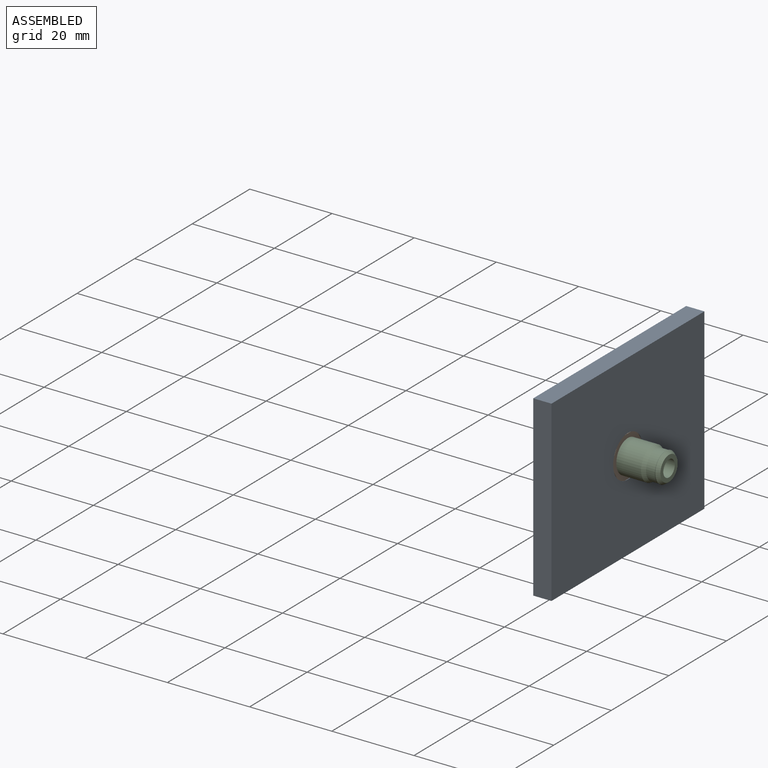
[diagram: assembled view]
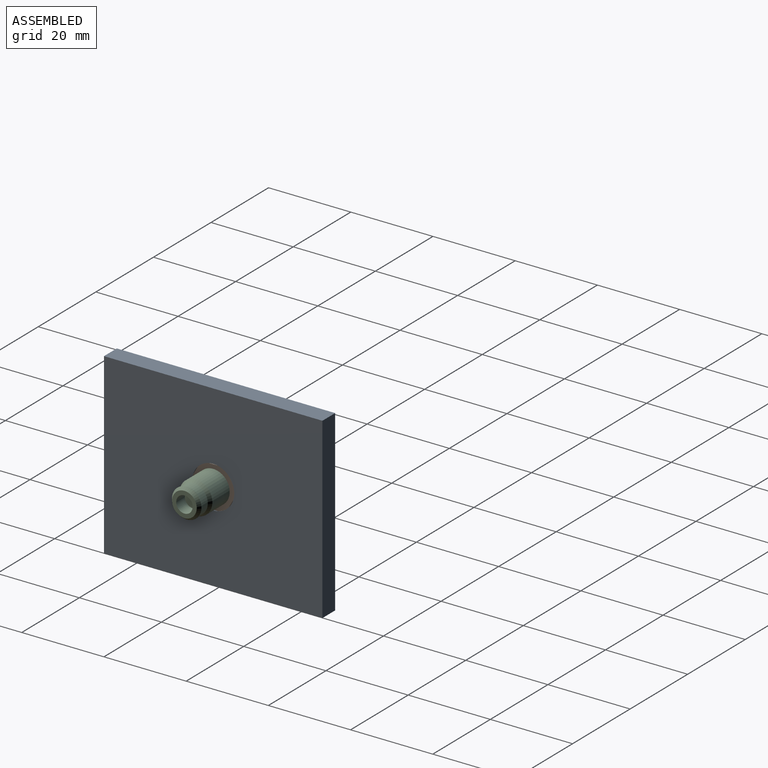
[diagram: assembled view, second angle]
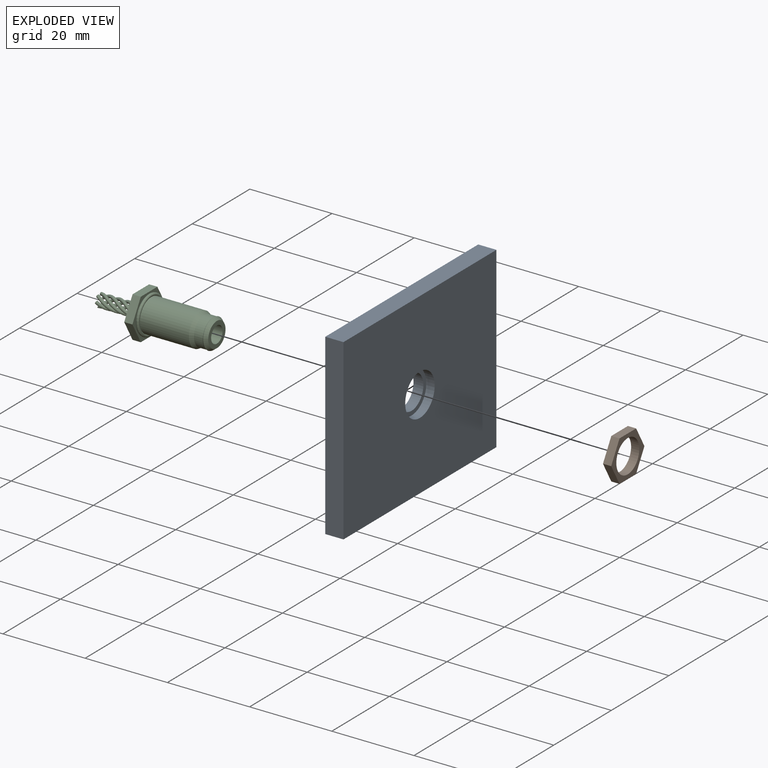
[diagram: exploded view]
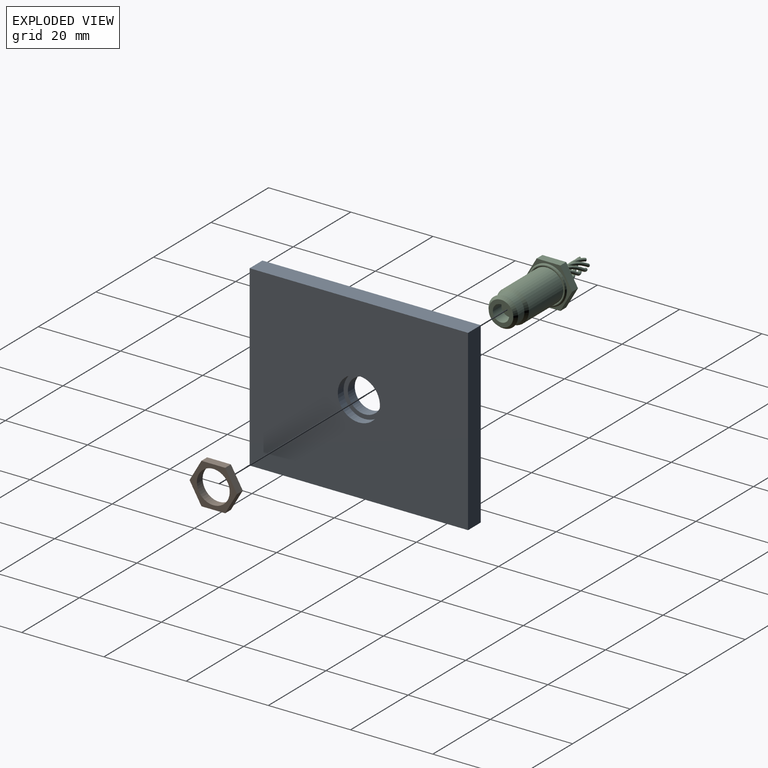
[diagram: exploded view, second angle]
ASSEMBLY  parts=3 mates=2
PART A: 9 faces, bbox 4.4x53.1x43.4 mm
  f0: plane 10.25x10.25mm, normal (1,0,0), area 29.7mm2, adj f4,f7
  f1: plane 53.14x4.43mm, normal (0,0,-1), area 235.4mm2, adj f2,f5,f6,f8
  f2: plane 43.38x4.43mm, normal (0,1,0), area 192.2mm2, adj f1,f3,f6,f8
  f3: plane 53.14x4.43mm, normal (0,0,1), area 235.4mm2, adj f2,f5,f6,f8
  f4: cylinder r=4.1mm len=8.2mm, axis (1,0,0), area 61.8mm2, adj f0,f6
  f5: plane 43.38x4.43mm, normal (0,-1,0), area 192.2mm2, adj f1,f3,f6,f8
  f6: plane 53.14x43.38mm, normal (-1,0,0), area 2252.5mm2, adj f1,f2,f3,f4,f5
  f7: cylinder r=5.12mm len=10.25mm, axis (-1,0,0), area 65.4mm2, adj f0,f8
  f8: plane 53.14x43.38mm, normal (1,0,0), area 2222.8mm2, adj f1,f2,f3,f5,f7
PART B: 9 faces, bbox 2x11.5x10 mm
  f0: plane 5x2.89mm, normal (0,0.87,0.5), area 11.5mm2, adj f1,f5,f6,f7
  f1: plane 5.77x2mm, normal (0,0,1), area 11.5mm2, adj f0,f2,f6,f7
  f2: plane 5x2.89mm, normal (0,-0.87,0.5), area 11.5mm2, adj f1,f3,f6,f7
  f3: plane 5x2.89mm, normal (0,-0.87,-0.5), area 11.5mm2, adj f2,f4,f6,f7
  f4: plane 5.77x2mm, normal (0,0,-1), area 11.5mm2, adj f3,f5,f6,f7
  f5: plane 5x2.89mm, normal (0,0.87,-0.5), area 11.5mm2, adj f0,f4,f6,f7
  f6: plane 11.55x10mm, normal (1,0,0), area 36.3mm2, adj f0,f1,f2,f3,f4,f5,f8
  f7: plane 11.55x10mm, normal (-1,0,0), area 36.3mm2, adj f0,f1,f2,f3,f4,f5,f8
  f8: cylinder r=4mm len=8mm, axis (-1,0,0), area 50.3mm2, adj f6,f7
PART C: 35 faces, bbox 29.2x12.1x10.6 mm
  f0: cylinder r=4mm len=11.97mm, axis (-1,0,0), area 300.8mm2, adj f1,f8
  f1: cone r=3.5mm half-angle=30deg, axis (-1,0,0), area 23.6mm2, adj f0,f2
  f2: cylinder r=3.5mm len=7mm, axis (-1,0,0), area 46.9mm2, adj f1,f3
  f3: cone r=3.5mm half-angle=26.6deg, axis (1,0,0), area 5mm2, adj f2,f4
  f4: cone r=3mm half-angle=36.9deg, axis (-1,0,0), area 20.7mm2, adj f3,f5
  f5: plane 6x6mm, normal (1,0,0), area 15.7mm2, adj f4,f6
  f6: cylinder r=2mm len=4mm, axis (-1,0,0), area 37.7mm2, adj f5,f7
  f7: plane 4x4mm, normal (1,0,0), area 12.6mm2, adj f6
  f8: torus R=4.27mm, axis (1,0,0), area 32.8mm2, adj f0,f9
  f9: plane 11.55x10mm, normal (1,0,0), area 22.1mm2, adj f8,f10,f30,f31,f32,f33,f34
  f10: plane 5x2.89mm, normal (0,0.87,-0.5), area 11.5mm2, adj f9,f11,f30,f34
  f11: plane 12.07x10.52mm, normal (-1,0,0), area 83.5mm2, adj f10,f12,f13,f15,f17,f18,f20,f21
  f12: cylinder r=0.38mm len=0.38mm, axis (-0.86,-0.51,0), area 0mm2, adj f11,f13
  f13: bspline ~10.38x3.24mm, area 27.4mm2, adj f11,f12,f14
  f14: plane 0.85x0.75mm, normal (-0.86,0,-0.51), area 0.4mm2, adj f13
  f15: bspline ~10.38x3.24mm, area 27.4mm2, adj f11,f16,f17
  f16: plane 0.83x0.78mm, normal (-0.86,-0.44,-0.25), area 0.4mm2, adj f15
  f17: cylinder r=0.38mm len=0.69mm, axis (-0.86,-0.25,0.44), area 0mm2, adj f11,f15
  f18: bspline ~10.38x3.24mm, area 27.4mm2, adj f11,f19,f20
  f19: plane 0.83x0.78mm, normal (-0.86,-0.44,0.25), area 0.4mm2, adj f18
  f20: cylinder r=0.38mm len=0.69mm, axis (-0.86,0.25,0.44), area 0mm2, adj f11,f18
  f21: cylinder r=0.38mm len=0.38mm, axis (-0.86,0.51,0), area 0mm2, adj f11,f22
  f22: bspline ~10.38x3.24mm, area 27.4mm2, adj f11,f21,f23
  f23: plane 0.85x0.75mm, normal (-0.86,0,0.51), area 0.4mm2, adj f22
  f24: bspline ~10.38x3.24mm, area 27.4mm2, adj f11,f25,f26
  f25: plane 0.83x0.78mm, normal (-0.86,0.44,0.25), area 0.4mm2, adj f24
  f26: cylinder r=0.38mm len=0.69mm, axis (-0.86,0.25,-0.44), area 0mm2, adj f11,f24
  f27: bspline ~10.38x3.24mm, area 27.4mm2, adj f11,f28,f29
  f28: plane 0.83x0.78mm, normal (-0.86,0.44,-0.25), area 0.4mm2, adj f27
  f29: cylinder r=0.38mm len=0.69mm, axis (-0.86,-0.25,-0.44), area 0mm2, adj f11,f27
  f30: plane 5.77x2mm, normal (0,0,-1), area 11.5mm2, adj f9,f10,f11,f31
  f31: plane 5x2.89mm, normal (0,-0.87,-0.5), area 11.5mm2, adj f9,f11,f30,f32
  f32: plane 5x2.89mm, normal (0,-0.87,0.5), area 11.5mm2, adj f9,f11,f31,f33
  f33: plane 5.77x2mm, normal (0,0,1), area 11.5mm2, adj f9,f11,f32,f34
  f34: plane 5x2.89mm, normal (0,0.87,0.5), area 11.5mm2, adj f9,f10,f11,f33
PLACE A at identity fixed
PLACE B at identity
PLACE C t=(-6.47,0,0)mm
MATE fastened C.f1 <-> A.f7  axis (1,0,0) through (12.03,0,0)mm
MATE fastened B.f8 <-> A.f4  axis (-1,0,0) through (0,0,0)mm
